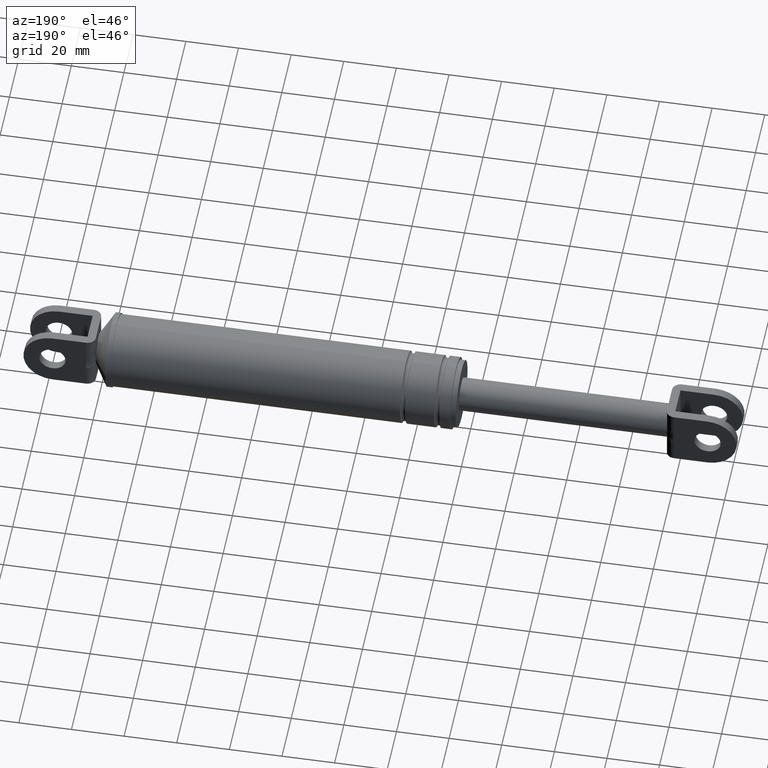
[diagram: clean part render]
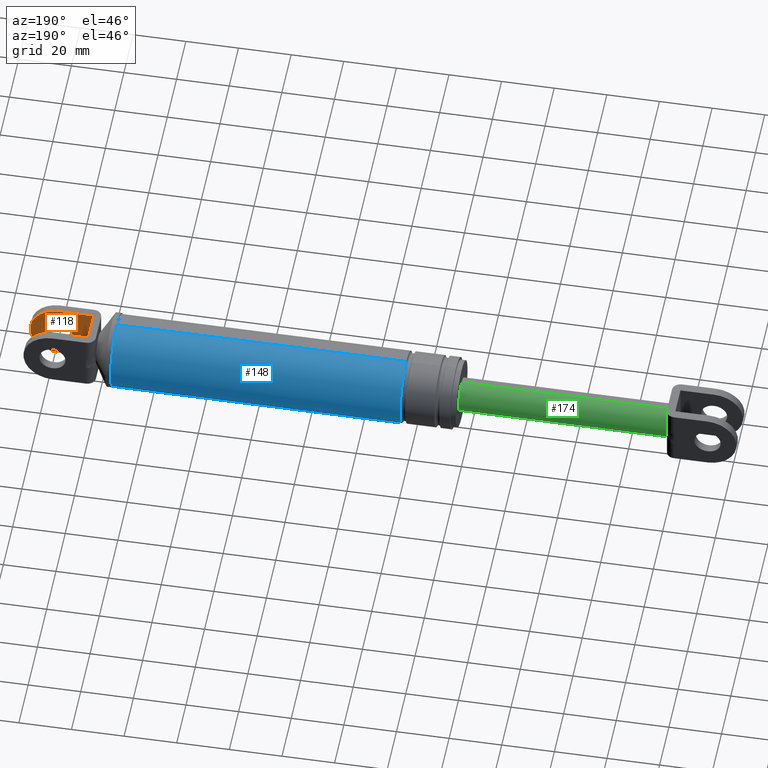
[diagram: same view with three faces highlighted in distinct colors, each labeled with its STEP entity id]
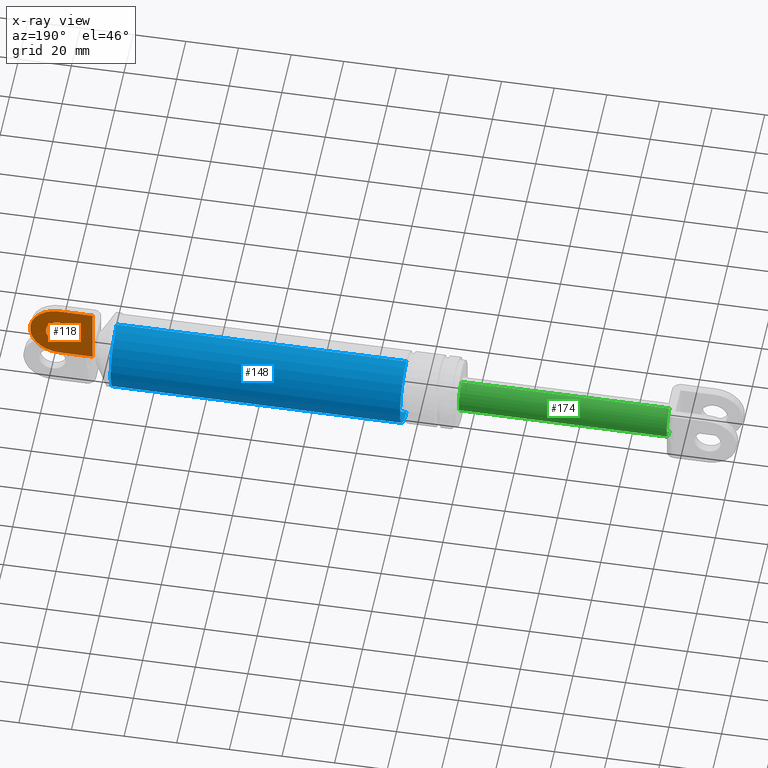
[diagram: x-ray of the same camera — body ghosted, the three highlighted faces saturated]
A machine part, auxiliary view with three faces highlighted in distinct colors.
The next image is the same camera in x-ray (body ghosted, the three faces saturated) — at least one of them is partly hidden behind the body in this view.
Their STEP definitions:

[orange] entity #118 — the highlighted planar face has unit normal (0, -1, 0).
#118=ADVANCED_FACE('',(#238,#239),#237,.F.);
#237=PLANE('',#912);
#238=FACE_OUTER_BOUND('',#913,.T.);
#239=FACE_BOUND('',#914,.T.);
#909=CARTESIAN_POINT('',(3.22266955939E+002,-5.50000000000E+000,1.83929320598E+002));
#910=DIRECTION('',(0.00000000000E+000,-1.00000000000E+000,0.00000000000E+000));
#911=DIRECTION('',(0.00000000000E+000,0.00000000000E+000,-1.00000000000E+000));
#912=AXIS2_PLACEMENT_3D('',#909,#910,#911);
#913=EDGE_LOOP('',(#1406,#1407,#1408,#1409));
#914=EDGE_LOOP('',(#1410,#1411));
#1406=ORIENTED_EDGE('',*,*,#1724,.F.);
#1407=ORIENTED_EDGE('',*,*,#1725,.T.);
#1408=ORIENTED_EDGE('',*,*,#1726,.F.);
#1409=ORIENTED_EDGE('',*,*,#1727,.F.);
#1410=ORIENTED_EDGE('',*,*,#1728,.T.);
#1411=ORIENTED_EDGE('',*,*,#1729,.T.);
#1724=EDGE_CURVE('',#2025,#2026,#2027,.T.);
#1725=EDGE_CURVE('',#2025,#2033,#2034,.T.);
#1726=EDGE_CURVE('',#2040,#2033,#2041,.T.);
#1727=EDGE_CURVE('',#2026,#2040,#2047,.T.);
#1728=EDGE_CURVE('',#2053,#2054,#2055,.T.);
#1729=EDGE_CURVE('',#2054,#2053,#2061,.T.);
#2025=VERTEX_POINT('',#3057);
#2026=VERTEX_POINT('',#3058);
#2027=CIRCLE('',#3062,1.10000000000E+001);
#2033=VERTEX_POINT('',#3063);
#2034=LINE('',#3064,#3065);
#2040=VERTEX_POINT('',#3067);
#2041=LINE('',#3068,#3069);
#2047=LINE('',#3071,#3072);
#2053=VERTEX_POINT('',#3074);
#2054=VERTEX_POINT('',#3075);
#2055=CIRCLE('',#3079,5.00000000000E+000);
#2061=CIRCLE('',#3083,5.00000000000E+000);
#3057=CARTESIAN_POINT('',(3.37446941827E+002,-5.50000000000E+000,1.59729320502E+002));
#3058=CARTESIAN_POINT('',(3.37446942787E+002,-5.50000000000E+000,1.81729320502E+002));
#3059=CARTESIAN_POINT('',(3.37446942787E+002,-5.50000000000E+000,1.70729320502E+002));
#3060=DIRECTION('',(0.00000000000E+000,-1.00000000000E+000,0.00000000000E+000));
#3061=DIRECTION('',(-0.00000000000E+000,-0.00000000000E+000,1.00000000000E+000));
#3062=AXIS2_PLACEMENT_3D('',#3059,#3060,#3061);
#3063=CARTESIAN_POINT('',(3.24646954787E+002,-5.50000000000E+000,1.59729320502E+002));
#3064=CARTESIAN_POINT('',(3.37446941827E+002,-5.50000000000E+000,1.59729320502E+002));
#3065=VECTOR('',#3066,1.27999870401E+001);
#3066=DIRECTION('',(-1.00000000000E+000,0.00000000000E+000,0.00000000000E+000));
#3067=CARTESIAN_POINT('',(3.24646954787E+002,-5.50000000000E+000,1.81729320502E+002));
#3068=CARTESIAN_POINT('',(3.24646954787E+002,-5.50000000000E+000,1.81729320502E+002));
#3069=VECTOR('',#3070,2.20000000000E+001);
#3070=DIRECTION('',(0.00000000000E+000,0.00000000000E+000,-1.00000000000E+000));
#3071=CARTESIAN_POINT('',(3.37446942787E+002,-5.50000000000E+000,1.81729320502E+002));
#3072=VECTOR('',#3073,1.27999880000E+001);
#3073=DIRECTION('',(-1.00000000000E+000,0.00000000000E+000,0.00000000000E+000));
#3074=CARTESIAN_POINT('',(3.37446942787E+002,-5.50000000000E+000,1.65729320502E+002));
#3075=CARTESIAN_POINT('',(3.37446942787E+002,-5.50000000000E+000,1.75729320502E+002));
#3076=CARTESIAN_POINT('',(3.37446942787E+002,-5.50000000000E+000,1.70729320502E+002));
#3077=DIRECTION('',(0.00000000000E+000,-1.00000000000E+000,-0.00000000000E+000));
#3078=DIRECTION('',(-1.22460635382E-016,0.00000000000E+000,-1.00000000000E+000));
#3079=AXIS2_PLACEMENT_3D('',#3076,#3077,#3078);
#3080=CARTESIAN_POINT('',(3.37446942787E+002,-5.50000000000E+000,1.70729320502E+002));
#3081=DIRECTION('',(0.00000000000E+000,-1.00000000000E+000,-0.00000000000E+000));
#3082=DIRECTION('',(-1.22460635382E-016,0.00000000000E+000,-1.00000000000E+000));
#3083=AXIS2_PLACEMENT_3D('',#3080,#3081,#3082);

[blue] entity #148 — the highlighted cylindrical surface (partial cylindrical patch) has radius 13.7 mm, axis along (1, 0, 0).
#148=ADVANCED_FACE('',(#543),#542,.T.);
#542=CYLINDRICAL_SURFACE('',#1183,1.37000000000E+001);
#543=FACE_OUTER_BOUND('',#1184,.T.);
#1180=CARTESIAN_POINT('',(0.00000000000E+000,0.00000000000E+000,1.70729320502E+002));
#1181=DIRECTION('',(1.00000000000E+000,-0.00000000000E+000,-0.00000000000E+000));
#1182=DIRECTION('',(0.00000000000E+000,0.00000000000E+000,-1.00000000000E+000));
#1183=AXIS2_PLACEMENT_3D('',#1180,#1181,#1182);
#1184=EDGE_LOOP('',(#1558,#1559,#1560,#1561));
#1558=ORIENTED_EDGE('',*,*,#1763,.T.);
#1559=ORIENTED_EDGE('',*,*,#1796,.F.);
#1560=ORIENTED_EDGE('',*,*,#1782,.F.);
#1561=ORIENTED_EDGE('',*,*,#1797,.T.);
#1763=EDGE_CURVE('',#2281,#2280,#2288,.T.);
#1782=EDGE_CURVE('',#2410,#2411,#2412,.T.);
#1796=EDGE_CURVE('',#2411,#2280,#2502,.T.);
#1797=EDGE_CURVE('',#2410,#2281,#2508,.T.);
#2280=VERTEX_POINT('',#3218);
#2281=VERTEX_POINT('',#3219);
#2288=CIRCLE('',#3227,1.37000000000E+001);
#2410=VERTEX_POINT('',#3294);
#2411=VERTEX_POINT('',#3295);
#2412=CIRCLE('',#3299,1.37000000000E+001);
#2502=(BOUNDED_CURVE() B_SPLINE_CURVE(1,(#3354,#3355),.UNSPECIFIED.,.F.,.F.) B_SPLINE_CURVE_WITH_KNOTS((2,2),(7.69230771804E-002,9.23076923214E-001),.UNSPECIFIED.) CURVE() GEOMETRIC_REPRESENTATION_ITEM() RATIONAL_B_SPLINE_CURVE((1.00000000000E+000,1.00000000000E+000)) REPRESENTATION_ITEM('') );
#2508=(BOUNDED_CURVE() B_SPLINE_CURVE(1,(#3356,#3357),.UNSPECIFIED.,.F.,.F.) B_SPLINE_CURVE_WITH_KNOTS((2,2),(7.69230769231E-002,9.23076923077E-001),.UNSPECIFIED.) CURVE() GEOMETRIC_REPRESENTATION_ITEM() RATIONAL_B_SPLINE_CURVE((7.50000000000E-001,7.50000000000E-001)) REPRESENTATION_ITEM('') );
#3218=CARTESIAN_POINT('',(3.14446942787E+002,0.00000000000E+000,1.57029320502E+002));
#3219=CARTESIAN_POINT('',(3.14446942787E+002,0.00000000000E+000,1.84429320502E+002));
#3224=CARTESIAN_POINT('',(3.14446942787E+002,0.00000000000E+000,1.70729320502E+002));
#3225=DIRECTION('',(-1.00000000000E+000,0.00000000000E+000,0.00000000000E+000));
#3226=DIRECTION('',(0.00000000000E+000,-1.22460635382E-016,1.00000000000E+000));
#3227=AXIS2_PLACEMENT_3D('',#3224,#3225,#3226);
#3294=CARTESIAN_POINT('',(2.04446942787E+002,0.00000000000E+000,1.84429320502E+002));
#3295=CARTESIAN_POINT('',(2.04446942787E+002,0.00000000000E+000,1.57029320502E+002));
#3296=CARTESIAN_POINT('',(2.04446942787E+002,0.00000000000E+000,1.70729320502E+002));
#3297=DIRECTION('',(-1.00000000000E+000,0.00000000000E+000,0.00000000000E+000));
#3298=DIRECTION('',(0.00000000000E+000,-1.22460635382E-016,1.00000000000E+000));
#3299=AXIS2_PLACEMENT_3D('',#3296,#3297,#3298);
#3354=CARTESIAN_POINT('',(2.04446942820E+002,0.00000000000E+000,1.57029320502E+002));
#3355=CARTESIAN_POINT('',(3.14446942805E+002,0.00000000000E+000,1.57029320502E+002));
#3356=CARTESIAN_POINT('',(2.04446942787E+002,-5.92118946467E-016,1.84429320502E+002));
#3357=CARTESIAN_POINT('',(3.14446942787E+002,-5.92118946467E-016,1.84429320502E+002));

[green] entity #174 — the highlighted cylindrical surface (edge-blend (fillet) strip) has radius 6.25 mm, axis along (1, 0, 0).
#174=ADVANCED_FACE('',(#807),#806,.T.);
#806=CYLINDRICAL_SURFACE('',#1369,6.25000000000E+000);
#807=FACE_OUTER_BOUND('',#1370,.T.);
#1366=CARTESIAN_POINT('',(0.00000000000E+000,0.00000000000E+000,1.70729320502E+002));
#1367=DIRECTION('',(1.00000000000E+000,-0.00000000000E+000,-0.00000000000E+000));
#1368=DIRECTION('',(0.00000000000E+000,0.00000000000E+000,-1.00000000000E+000));
#1369=AXIS2_PLACEMENT_3D('',#1366,#1367,#1368);
#1370=EDGE_LOOP('',(#1688,#1689,#1690,#1691,#1692,#1693));
#1688=ORIENTED_EDGE('',*,*,#1850,.T.);
#1689=ORIENTED_EDGE('',*,*,#1860,.F.);
#1690=ORIENTED_EDGE('',*,*,#1823,.F.);
#1691=ORIENTED_EDGE('',*,*,#1844,.F.);
#1692=ORIENTED_EDGE('',*,*,#1816,.F.);
#1693=ORIENTED_EDGE('',*,*,#1861,.T.);
#1816=EDGE_CURVE('',#2630,#2637,#2638,.T.);
#1823=EDGE_CURVE('',#2684,#2685,#2686,.T.);
#1844=EDGE_CURVE('',#2637,#2684,#2824,.T.);
#1850=EDGE_CURVE('',#2855,#2854,#2862,.T.);
#1860=EDGE_CURVE('',#2685,#2854,#2926,.T.);
#1861=EDGE_CURVE('',#2630,#2855,#2932,.T.);
#2630=VERTEX_POINT('',#3433);
#2637=VERTEX_POINT('',#3438);
#2638=CIRCLE('',#3442,6.25000000000E+000);
#2684=VERTEX_POINT('',#3468);
#2685=VERTEX_POINT('',#3469);
#2686=CIRCLE('',#3473,6.25000000000E+000);
#2824=CIRCLE('',#3563,6.25000000000E+000);
#2854=VERTEX_POINT('',#3578);
#2855=VERTEX_POINT('',#3579);
#2862=CIRCLE('',#3587,6.25000000000E+000);
#2926=(BOUNDED_CURVE() B_SPLINE_CURVE(1,(#3620,#3621),.UNSPECIFIED.,.F.,.F.) B_SPLINE_CURVE_WITH_KNOTS((2,2),(8.33333332085E-002,9.16666666563E-001),.UNSPECIFIED.) CURVE() GEOMETRIC_REPRESENTATION_ITEM() RATIONAL_B_SPLINE_CURVE((1.00000000000E+000,1.00000000000E+000)) REPRESENTATION_ITEM('') );
#2932=(BOUNDED_CURVE() B_SPLINE_CURVE(1,(#3622,#3623),.UNSPECIFIED.,.F.,.F.) B_SPLINE_CURVE_WITH_KNOTS((2,2),(8.33333333333E-002,9.16666666667E-001),.UNSPECIFIED.) CURVE() GEOMETRIC_REPRESENTATION_ITEM() RATIONAL_B_SPLINE_CURVE((7.50000000000E-001,7.50000000000E-001)) REPRESENTATION_ITEM('') );
#3433=CARTESIAN_POINT('',(1.04446942787E+002,7.89135247850E-007,1.76979320502E+002));
#3438=CARTESIAN_POINT('',(1.04446942787E+002,5.49999700000E+000,1.73697911582E+002));
#3439=CARTESIAN_POINT('',(1.04446942787E+002,0.00000000000E+000,1.70729320502E+002));
#3440=DIRECTION('',(-1.00000000000E+000,0.00000000000E+000,0.00000000000E+000));
#3441=DIRECTION('',(-0.00000000000E+000,-0.00000000000E+000,-1.00000000000E+000));
#3442=AXIS2_PLACEMENT_3D('',#3439,#3440,#3441);
#3468=CARTESIAN_POINT('',(1.04446942787E+002,5.49999700000E+000,1.67760729422E+002));
#3469=CARTESIAN_POINT('',(1.04446942787E+002,-4.27327916267E-012,1.64479320502E+002));
#3470=CARTESIAN_POINT('',(1.04446942787E+002,0.00000000000E+000,1.70729320502E+002));
#3471=DIRECTION('',(-1.00000000000E+000,0.00000000000E+000,0.00000000000E+000));
#3472=DIRECTION('',(-0.00000000000E+000,8.79999520000E-001,-4.74974572793E-001));
#3473=AXIS2_PLACEMENT_3D('',#3470,#3471,#3472);
#3560=CARTESIAN_POINT('',(1.04446942787E+002,0.00000000000E+000,1.70729320502E+002));
#3561=DIRECTION('',(-1.00000000000E+000,0.00000000000E+000,0.00000000000E+000));
#3562=DIRECTION('',(-0.00000000000E+000,-0.00000000000E+000,-1.00000000000E+000));
#3563=AXIS2_PLACEMENT_3D('',#3560,#3561,#3562);
#3578=CARTESIAN_POINT('',(1.83446942787E+002,0.00000000000E+000,1.64479320502E+002));
#3579=CARTESIAN_POINT('',(1.83446942787E+002,0.00000000000E+000,1.76979320502E+002));
#3584=CARTESIAN_POINT('',(1.83446942787E+002,0.00000000000E+000,1.70729320502E+002));
#3585=DIRECTION('',(-1.00000000000E+000,0.00000000000E+000,0.00000000000E+000));
#3586=DIRECTION('',(0.00000000000E+000,-1.22460635382E-016,1.00000000000E+000));
#3587=AXIS2_PLACEMENT_3D('',#3584,#3585,#3586);
#3620=CARTESIAN_POINT('',(1.04446942775E+002,0.00000000000E+000,1.64479320502E+002));
#3621=CARTESIAN_POINT('',(1.83446942777E+002,0.00000000000E+000,1.64479320502E+002));
#3622=CARTESIAN_POINT('',(1.04446942787E+002,0.00000000000E+000,1.76979320502E+002));
#3623=CARTESIAN_POINT('',(1.83446942787E+002,0.00000000000E+000,1.76979320502E+002));